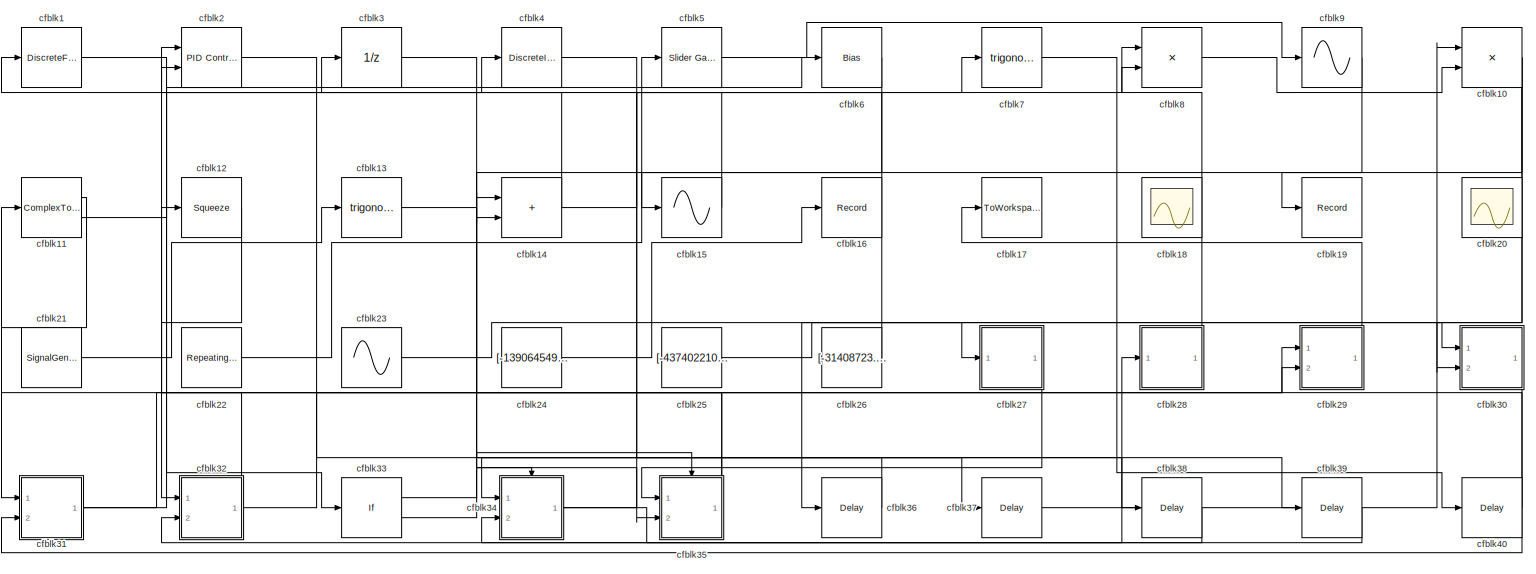
[diagram: root canvas - part 1/1, most of the canvas]
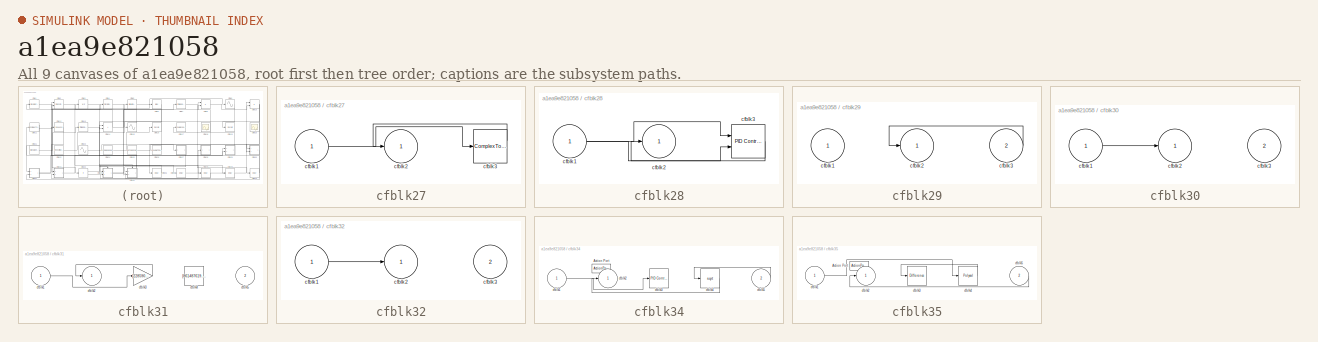
[diagram: thumbnail index - all 9 canvases of the model, root first then tree order]
MODEL slx_a1ea9e821058
KIND model
CONFIG AbsTol = auto
CONFIG EnableMultiTasking = off
CONFIG FixedStep = auto
CONFIG MaxStep = auto
CONFIG MinStep = auto
CONFIG RelTol = 1e-3
CONFIG SampleTimeConstraint = Unconstrained
CONFIG SolverName = VariableStepAuto
CONFIG StartTime = 0.0
CONFIG StopTime = 10.0
BLOCK [DiscreteFir] cfblk1
  InputPortMap = u0
  OutputPortMap = o0
  Ports = [1, 1]
  SampleTime = 1
BLOCK [Product] cfblk10
  Inputs = **
  Ports = [2, 1]
BLOCK [ComplexToRealImag] cfblk11
  Ports = [1, 2]
BLOCK [Squeeze] cfblk12
BLOCK [Trigonometry] cfblk13
  Ports = [1, 1]
BLOCK [Sum] cfblk14
  IconShape = rectangular
  Ports = [2, 1]
BLOCK [Sin] cfblk15
  Ports = [1, 1]
  SampleTime = 0
  TimeSource = Use external signal
BLOCK [Record] cfblk16
  FileSettingsInternal = {"entries":[{"content":{"excelSettings":{"content":{},"type":"Streamout.ExcelSettings"}},"type":"Streamout.FileSettingStorage","uuid":"0863ea78-fe42-4e51-9615-50c44c6d4605"}],"packageUris":["http://schema.mathworks.com/mf0/streamout_blocks/R2020a"],"version":"1.0"}
  Ports = [1]
  SignalsInternal = {"entries":[{"content":{"signals":[{"content":{"blockPath":["sampleModel164/cfblk16"],"channel":[],"dimensions":[1],"domain":"sampleModel164/cfblk16","lineColor":"#a2142f","plots":[1],"port":1,"sid":[""],"signalID":6198,"signalName":"cfblk24"},"type":"RecordBlkView.Signal","uuid":"d13cb99a-b701-4097-8bdf-11ef0da245d3"}]},"type":"RecordBlkView.InputSignals","uuid":"f391de3d-49c5-4683-8100-f087ce5b2...<+97ch>
  VisualizationBindings = {"sparklinesplugin":{"info":[{"bindingParametersList":[],"subplotID":1}]}}
BLOCK [ToWorkspace] cfblk17
  FixptAsFi = on
  MaxDataPoints = inf
  Ports = [1]
  SampleTime = -1
  SaveFormat = Timeseries
  VariableName = aimgolu
BLOCK [Scope] cfblk18
  Floating = on
  NumInputPorts = 1
  Ports = []
BLOCK [Record] cfblk19
  FileSettingsInternal = {"entries":[{"content":{"excelSettings":{"content":{},"type":"Streamout.ExcelSettings"}},"type":"Streamout.FileSettingStorage","uuid":"0f3e0728-92e4-4f54-90bd-eb2dda86a2ae"}],"packageUris":["http://schema.mathworks.com/mf0/streamout_blocks/R2020a"],"version":"1.0"}
  Ports = [1]
  SignalsInternal = {"entries":[{"content":{"signals":[{"content":{"blockPath":["sampleModel164/cfblk19"],"channel":[],"dimensions":[1],"domain":"sampleModel164/cfblk19","lineColor":"#4dbeee","plots":[1],"port":1,"sid":[""],"signalID":6194,"signalName":"cfblk10"},"type":"RecordBlkView.Signal","uuid":"e0815150-2a4f-404b-9ee3-964481becec9"}]},"type":"RecordBlkView.InputSignals","uuid":"cd26fe7c-9dc6-4e05-b245-7a15f4988...<+97ch>
  VisualizationBindings = {"sparklinesplugin":{"info":[{"bindingParametersList":[],"subplotID":1}]}}
BLOCK [Reference] cfblk2  REF=slpidlib/PID Controller (2DOF)
  Ports = [2, 1]
  SourceBlock = slpidlib/PID Controller (2DOF)
  SourceProductBaseCode = SL
  SourceType = PID 2dof
BLOCK [Scope] cfblk20
  Floating = on
  NumInputPorts = 1
  Ports = []
BLOCK [SignalGenerator] cfblk21
  Amplitude = [429948630.606034]
  Ports = [0, 1]
BLOCK [Reference] cfblk22  REF=simulink/Sources/Repeating
Sequence
  Ports = [0, 1]
  SourceBlock = simulink/Sources/Repeating\nSequence
  SourceProductBaseCode = SL
  SourceType = Repeating table
BLOCK [Sin] cfblk23
  Amplitude = [-379713129.786265]
  Bias = [-61174810.176596]
  Ports = [0, 1]
  SampleTime = 0
BLOCK [Constant] cfblk24
  SampleTime = 1
  Value = [-139064549.460428]
BLOCK [Constant] cfblk25
  SampleTime = 1
  Value = [-437402210.572555]
BLOCK [Constant] cfblk26
  SampleTime = 1
  Value = [-31408723.875827]
BLOCK [SubSystem] cfblk27
  Ports = [1, 1]
  RequestExecContextInheritance = off
BLOCK [Inport] cfblk27/cfblk1
BLOCK [Outport] cfblk27/cfblk2
BLOCK [ComplexToMagnitudeAngle] cfblk27/cfblk3
  Ports = [1, 2]
BLOCK [SubSystem] cfblk28
  Ports = [1, 1]
  RequestExecContextInheritance = off
BLOCK [Inport] cfblk28/cfblk1
BLOCK [Outport] cfblk28/cfblk2
BLOCK [Reference] cfblk28/cfblk3  REF=slpidlib/PID Controller (2DOF)
  Ports = [2, 1]
  SourceBlock = slpidlib/PID Controller (2DOF)
  SourceProductBaseCode = SL
  SourceType = PID 2dof
BLOCK [SubSystem] cfblk29
  Ports = [2, 1]
  RequestExecContextInheritance = off
BLOCK [Inport] cfblk29/cfblk1
BLOCK [Outport] cfblk29/cfblk2
BLOCK [Inport] cfblk29/cfblk3
  Port = 2
BLOCK [UnitDelay] cfblk3
  HasFrameUpgradeWarning = on
BLOCK [SubSystem] cfblk30
  Ports = [2, 1]
  RequestExecContextInheritance = off
BLOCK [Inport] cfblk30/cfblk1
BLOCK [Outport] cfblk30/cfblk2
BLOCK [Inport] cfblk30/cfblk3
  Port = 2
BLOCK [SubSystem] cfblk31
  Ports = [2, 1]
  RequestExecContextInheritance = off
BLOCK [Inport] cfblk31/cfblk1
BLOCK [Outport] cfblk31/cfblk2
BLOCK [Gain] cfblk31/cfblk3
  Gain = [228590593.315914]
BLOCK [Constant] cfblk31/cfblk4
  SampleTime = 1
  Value = [861487619.946239]
BLOCK [Inport] cfblk31/cfblk5
  Port = 2
BLOCK [SubSystem] cfblk32
  Ports = [2, 1]
  RequestExecContextInheritance = off
BLOCK [Inport] cfblk32/cfblk1
BLOCK [Outport] cfblk32/cfblk2
BLOCK [Inport] cfblk32/cfblk3
  Port = 2
BLOCK [If] cfblk33
  IfExpression = u1 >= 0
  Ports = [1, 2]
  SampleTime = 1
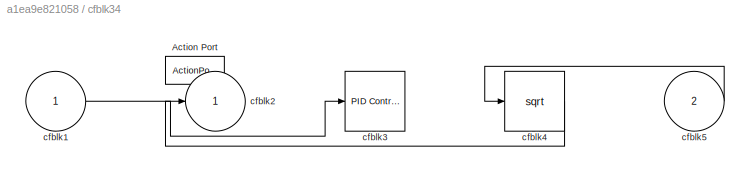
BLOCK [SubSystem] cfblk34
  Ports = [2, 1, 0, 0, 0, 0, 0, 1]
  RequestExecContextInheritance = off
  TreatAsAtomicUnit = on
BLOCK [ActionPort] cfblk34/Action Port
  ActionPortLabel = if(u1 >= 0)
BLOCK [Inport] cfblk34/cfblk1
BLOCK [Outport] cfblk34/cfblk2
BLOCK [Reference] cfblk34/cfblk3  REF=slpidlib/PID Controller
  Ports = [1, 1]
  SourceBlock = slpidlib/PID Controller
  SourceProductBaseCode = SL
  SourceType = PID 1dof
BLOCK [Sqrt] cfblk34/cfblk4
BLOCK [Inport] cfblk34/cfblk5
  Port = 2
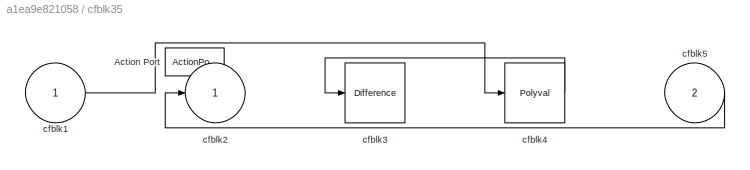
BLOCK [SubSystem] cfblk35
  Ports = [2, 1, 0, 0, 0, 0, 0, 1]
  RequestExecContextInheritance = off
  TreatAsAtomicUnit = on
BLOCK [ActionPort] cfblk35/Action Port
  ActionPortLabel = else
BLOCK [Inport] cfblk35/cfblk1
BLOCK [Outport] cfblk35/cfblk2
BLOCK [Reference] cfblk35/cfblk3  REF=simulink/Discrete/Difference
  Ports = [1, 1]
  SourceBlock = simulink/Discrete/Difference
  SourceProductBaseCode = SL
  SourceType = Difference
BLOCK [Polyval] cfblk35/cfblk4
  Coefs = [ +2.081618890e-019, -1.441693666e-014, +4.719686976e-010, -8.536869453e-006, +1.621573104e-001, -8.087801117e+001 ]
BLOCK [Inport] cfblk35/cfblk5
  Port = 2
BLOCK [Delay] cfblk36
  InputPortMap = u0
  Ports = [1, 1]
  SampleTime = 1
BLOCK [Delay] cfblk37
  InputPortMap = u0
  Ports = [1, 1]
  SampleTime = 1
BLOCK [Delay] cfblk38
  InputPortMap = u0
  Ports = [1, 1]
  SampleTime = 1
BLOCK [Delay] cfblk39
  InputPortMap = u0
  Ports = [1, 1]
  SampleTime = 1
BLOCK [DiscreteIntegrator] cfblk4
  ICPrevOutput = DiscIntNeverNeededParam
  ICPrevScaledInput = DiscIntNeverNeededParam
  InitialConditionSetting = Auto
  Ports = [1, 1]
BLOCK [Delay] cfblk40
  InputPortMap = u0
  Ports = [1, 1]
  SampleTime = 1
BLOCK [Reference] cfblk5  REF=simulink/Math
Operations/Slider
Gain
  Ports = [1, 1]
  SourceBlock = simulink/Math\nOperations/Slider\nGain
  SourceProductBaseCode = SL
  SourceType = Slider Gain
BLOCK [Bias] cfblk6
  Bias = [944039234.097059]
  SaturateOnIntegerOverflow = off
BLOCK [Trigonometry] cfblk7
  Ports = [1, 1]
BLOCK [Product] cfblk8
  Ports = [2, 1]
BLOCK [Sin] cfblk9
  Ports = [1, 1]
  SampleTime = 0
  TimeSource = Use external signal
NET cfblk10:1 -> cfblk19:1, cfblk30:2, cfblk36:1
LINE cfblk11:1 -> cfblk31:1
LINE cfblk11:2 -> cfblk6:1
LINE cfblk12:1 -> cfblk32:1
LINE cfblk13:1 -> cfblk35:2
NET cfblk14:1 -> cfblk2:2, cfblk7:1
LINE cfblk15:1 -> cfblk3:1
LINE cfblk1:1 -> cfblk33:1
LINE cfblk21:1 -> cfblk13:1
LINE cfblk22:1 -> cfblk5:1
LINE cfblk23:1 -> cfblk27:1
LINE cfblk24:1 -> cfblk16:1
LINE cfblk25:1 -> cfblk30:1
LINE cfblk26:1 -> cfblk1:1
LINE cfblk27/cfblk1:1 -> cfblk27/cfblk3:1
LINE cfblk27/cfblk3:1 -> cfblk27/cfblk2:1
LINE cfblk27:1 -> cfblk35:1
NET cfblk28/cfblk1:1 -> cfblk28/cfblk3:1, cfblk28/cfblk3:2
LINE cfblk28/cfblk3:1 -> cfblk28/cfblk2:1
LINE cfblk28:1 -> cfblk8:1
LINE cfblk29/cfblk3:1 -> cfblk29/cfblk2:1
LINE cfblk29:1 -> cfblk17:1
LINE cfblk2:1 -> cfblk38:1
LINE cfblk30/cfblk1:1 -> cfblk30/cfblk2:1
LINE cfblk30:1 -> cfblk31:2
LINE cfblk31/cfblk1:1 -> cfblk31/cfblk3:1
LINE cfblk31/cfblk3:1 -> cfblk31/cfblk2:1
NET cfblk31:1 -> cfblk29:2, cfblk4:1
LINE cfblk32/cfblk1:1 -> cfblk32/cfblk2:1
NET cfblk32:1 -> cfblk11:1, cfblk29:1
LINE cfblk33:1 -> cfblk34:ifaction
LINE cfblk33:2 -> cfblk35:ifaction
LINE cfblk34/cfblk1:1 -> cfblk34/cfblk3:1
LINE cfblk34/cfblk4:1 -> cfblk34/cfblk2:1
LINE cfblk34/cfblk5:1 -> cfblk34/cfblk4:1
NET cfblk34:1 -> cfblk28:1, cfblk8:2
LINE cfblk35/cfblk1:1 -> cfblk35/cfblk4:1
LINE cfblk35/cfblk4:1 -> cfblk35/cfblk3:1
LINE cfblk35/cfblk5:1 -> cfblk35/cfblk2:1
NET cfblk35:1 -> cfblk12:1, cfblk2:1
LINE cfblk36:1 -> cfblk34:1
LINE cfblk37:1 -> cfblk10:1
LINE cfblk38:1 -> cfblk34:2
LINE cfblk39:1 -> cfblk32:2
LINE cfblk3:1 -> cfblk39:1
LINE cfblk40:1 -> cfblk14:1
LINE cfblk4:1 -> cfblk37:1
LINE cfblk5:1 -> cfblk9:1
LINE cfblk6:1 -> cfblk15:1
LINE cfblk7:1 -> cfblk40:1
LINE cfblk8:1 -> cfblk10:2
LINE cfblk9:1 -> cfblk14:2
note: NET lines group one-source signal fan-out (src -> all destinations, sorted); 1:1 wires keep LINE
